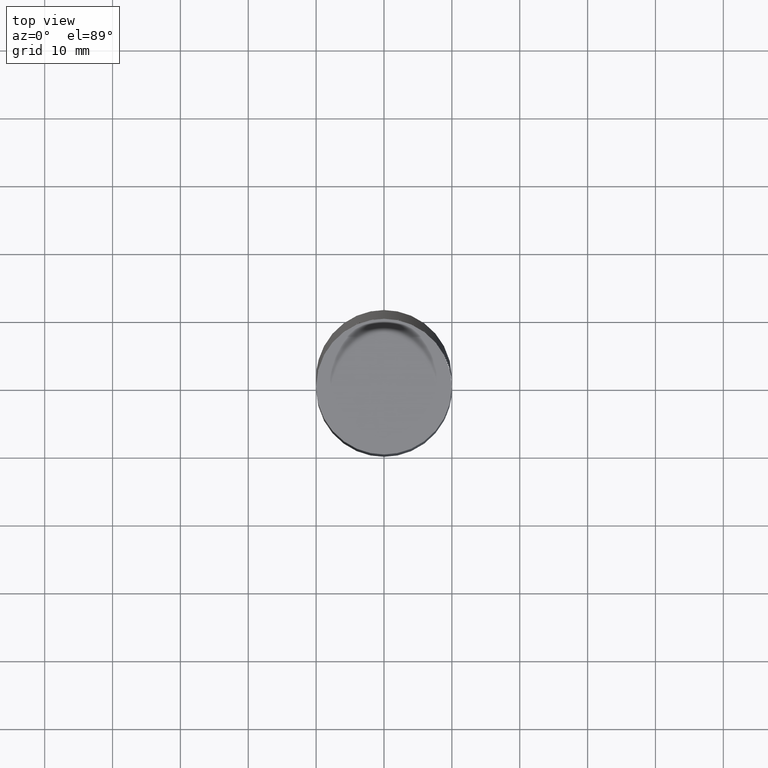
[diagram: clean part render]
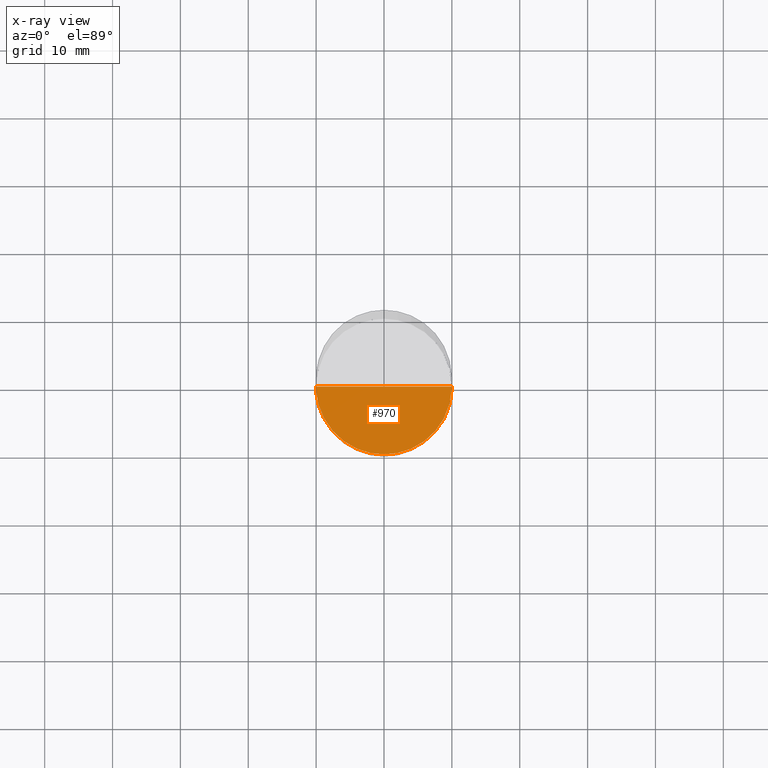
[diagram: x-ray — body ghosted, one internal face saturated and labeled with its STEP entity id]
A machine part, top view, then the same camera in x-ray: the body is ghosted and one INTERNAL B-rep face — a face not visible from any outside direction — is saturated and labeled: STEP entity #970.
In plain terms, the highlighted face is a freeform B-spline surface patch.
Its self-contained STEP definition (entity closure, byte-faithful):
#821=CARTESIAN_POINT('',(10.0,0.0,-5.0));
#825=CARTESIAN_POINT('',(-10.0,0.0,-5.0));
#826=CARTESIAN_POINT('',(0.0,0.0,-5.0));
#833=CARTESIAN_POINT('',(-10.0,-10.0,-5.0));
#834=CARTESIAN_POINT('',(0.0,-10.0,-5.0));
#835=CARTESIAN_POINT('',(10.0,-10.0,-5.0));
#955=(
BOUNDED_SURFACE()
B_SPLINE_SURFACE(1,2,(
(#825,#833,#834,#835,#821),
(#826,#826,#826,#826,#826)
), .UNSPECIFIED.,.F.,.F.,.F.)
B_SPLINE_SURFACE_WITH_KNOTS((2,2),(3,2,3),(
0.0,1.0),(
0.0,0.5,1.0), .UNSPECIFIED.)
GEOMETRIC_REPRESENTATION_ITEM()
RATIONAL_B_SPLINE_SURFACE(((1.0,0.707106781187,1.0,0.707106781187,1.0),
(1.0,0.707106781187,1.0,0.707106781187,1.0)
))
REPRESENTATION_ITEM('')
SURFACE()
);
#956=(
BOUNDED_CURVE()
B_SPLINE_CURVE(2,(#821,#835,#834,#833,#825),.UNSPECIFIED.,.F.,.F.)
B_SPLINE_CURVE_WITH_KNOTS((3,2,3),
(0.0,0.5,1.0),.UNSPECIFIED.)
CURVE()
GEOMETRIC_REPRESENTATION_ITEM()
RATIONAL_B_SPLINE_CURVE((1.0,0.707106781187,1.0,0.707106781187,1.0))
REPRESENTATION_ITEM('')
);
#957=(
BOUNDED_CURVE()
B_SPLINE_CURVE(1,(#825,#826),.UNSPECIFIED.,.F.,.F.)
B_SPLINE_CURVE_WITH_KNOTS((2,2),
(0.0,1.0),.UNSPECIFIED.)
CURVE()
GEOMETRIC_REPRESENTATION_ITEM()
RATIONAL_B_SPLINE_CURVE((1.0,1.0))
REPRESENTATION_ITEM('')
);
#958=(
BOUNDED_CURVE()
B_SPLINE_CURVE(1,(#826,#821),.UNSPECIFIED.,.F.,.F.)
B_SPLINE_CURVE_WITH_KNOTS((2,2),
(0.0,1.0),.UNSPECIFIED.)
CURVE()
GEOMETRIC_REPRESENTATION_ITEM()
RATIONAL_B_SPLINE_CURVE((1.0,1.0))
REPRESENTATION_ITEM('')
);
#959=VERTEX_POINT('',#821);
#960=VERTEX_POINT('',#825);
#961=VERTEX_POINT('',#826);
#962=EDGE_CURVE('',#959,#960,#956,.T.);
#963=EDGE_CURVE('',#960,#961,#957,.T.);
#964=EDGE_CURVE('',#961,#959,#958,.T.);
#965=ORIENTED_EDGE('',*,*,#962,.T.);
#966=ORIENTED_EDGE('',*,*,#963,.T.);
#967=ORIENTED_EDGE('',*,*,#964,.T.);
#968=EDGE_LOOP('',(#965,#966,#967));
#969=FACE_OUTER_BOUND('',#968,.T.);
#970=ADVANCED_FACE('',(#969),#955,.T.);